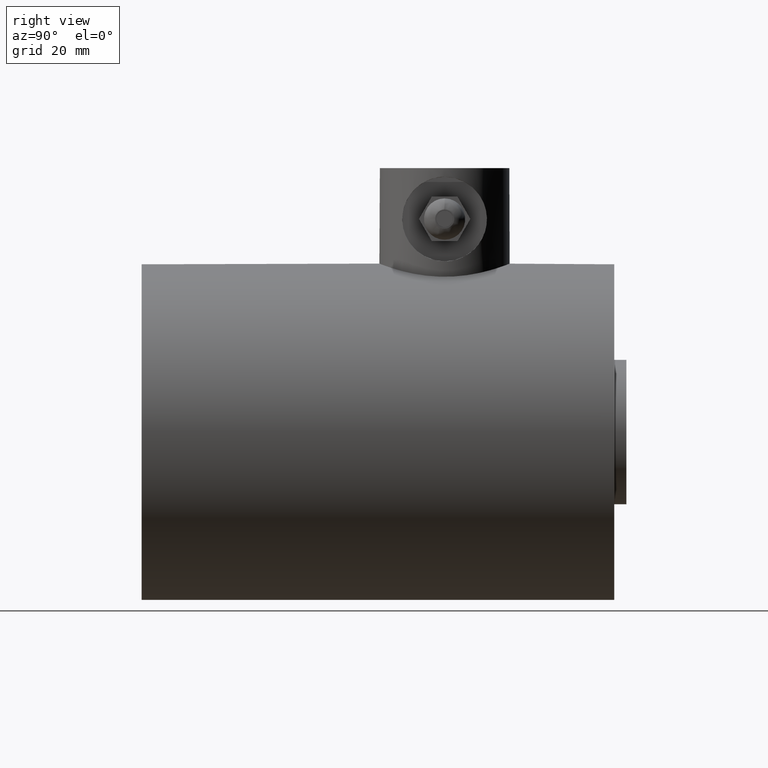
[diagram: clean part render]
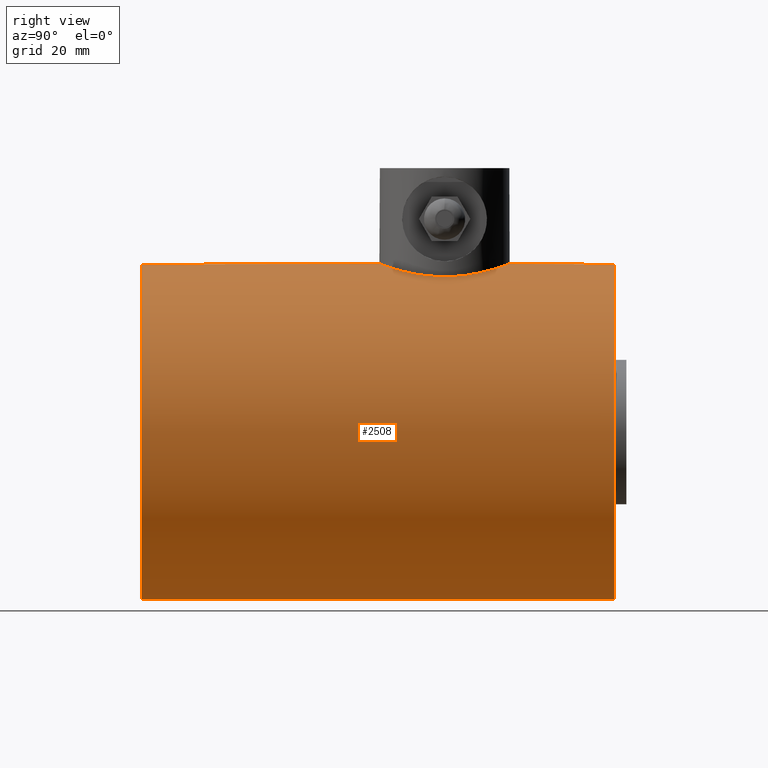
[diagram: same view with one face highlighted and labeled with its STEP entity id]
A machine part, right view. The second image highlights one B-rep face of the part: STEP entity #2508.
In plain terms, the highlighted cylindrical surface (bore or boss wall) has radius 52.959 mm, axis along (0, -1, 0).
Its self-contained STEP definition (entity closure, byte-faithful):
#210=B_SPLINE_CURVE_WITH_KNOTS('',3,(#12952,#12953,#12954,#12955,#12956,
#12957,#12958,#12959,#12960,#12961,#12962,#12963,#12964,#12965,#12966,#12967,
#12968,#12969,#12970,#12971,#12972,#12973,#12974,#12975,#12976,#12977,#12978,
#12979,#12980,#12981,#12982,#12983,#12984,#12985,#12986,#12987,#12988,#12989,
#12990,#12991,#12992,#12993,#12994,#12995,#12996,#12997,#12998,#12999,#13000,
#13001,#13002,#13003,#13004,#13005,#13006,#13007,#13008,#13009,#13010,#13011,
#13012,#13013,#13014,#13015,#13016,#13017),.UNSPECIFIED.,.T.,.F.,(4,2,2,
2,2,2,2,2,2,2,2,2,2,2,2,2,2,2,2,2,2,2,2,2,2,2,2,2,2,2,2,2,4),(0.,0.390740597873084,
0.781481195746169,1.17222179361925,1.56296239149234,1.95335999293871,2.34375759438508,
2.73415519583144,3.12455279727781,3.51495039872418,3.90534800017055,4.29574560161692,
4.68614320306329,5.07688380093637,5.46762439880946,5.85836499668254,6.24910559455563,
6.63984619242871,7.03058679030179,7.42132738817488,7.81206798604796,8.20246558749433,
8.5928631889407,8.98326079038707,9.37365839183344,9.76405599327981,10.1544535947262,
10.5448511961725,10.9352487976189,11.325989395492,11.7167299933651,12.1074705912382,
12.4982111891113),.UNSPECIFIED.);
#232=FACE_BOUND('',#566,.T.);
#407=FACE_OUTER_BOUND('',#565,.T.);
#565=EDGE_LOOP('',(#2255,#2256,#2257,#2258,#2259,#2260));
#566=EDGE_LOOP('',(#2261));
#701=LINE('',#13052,#836);
#836=VECTOR('',#3240,2.085);
#881=CIRCLE('',#2699,2.085);
#882=CIRCLE('',#2700,2.085);
#891=CIRCLE('',#2714,2.085);
#892=CIRCLE('',#2715,2.085);
#1127=VERTEX_POINT('',#12950);
#1128=VERTEX_POINT('',#13020);
#1129=VERTEX_POINT('',#13021);
#1138=VERTEX_POINT('',#13047);
#1139=VERTEX_POINT('',#13048);
#1498=EDGE_CURVE('',#1127,#1127,#210,.T.);
#1499=EDGE_CURVE('',#1128,#1129,#881,.T.);
#1500=EDGE_CURVE('',#1129,#1128,#882,.T.);
#1511=EDGE_CURVE('',#1138,#1139,#891,.T.);
#1512=EDGE_CURVE('',#1139,#1138,#892,.T.);
#1513=EDGE_CURVE('',#1129,#1139,#701,.T.);
#2255=ORIENTED_EDGE('',*,*,#1499,.F.);
#2256=ORIENTED_EDGE('',*,*,#1500,.F.);
#2257=ORIENTED_EDGE('',*,*,#1513,.T.);
#2258=ORIENTED_EDGE('',*,*,#1512,.T.);
#2259=ORIENTED_EDGE('',*,*,#1511,.T.);
#2260=ORIENTED_EDGE('',*,*,#1513,.F.);
#2261=ORIENTED_EDGE('',*,*,#1498,.T.);
#2363=CYLINDRICAL_SURFACE('',#2716,2.085);
#2508=ADVANCED_FACE('',(#407,#232),#2363,.T.);
#2699=AXIS2_PLACEMENT_3D('',#13022,#3202,#3203);
#2700=AXIS2_PLACEMENT_3D('',#13023,#3204,#3205);
#2714=AXIS2_PLACEMENT_3D('',#13049,#3234,#3235);
#2715=AXIS2_PLACEMENT_3D('',#13050,#3236,#3237);
#2716=AXIS2_PLACEMENT_3D('',#13051,#3238,#3239);
#3202=DIRECTION('center_axis',(0.,-1.,0.));
#3203=DIRECTION('ref_axis',(1.,0.,0.));
#3204=DIRECTION('center_axis',(0.,-1.,0.));
#3205=DIRECTION('ref_axis',(1.,0.,0.));
#3234=DIRECTION('center_axis',(0.,-1.,0.));
#3235=DIRECTION('ref_axis',(1.,0.,0.));
#3236=DIRECTION('center_axis',(0.,-1.,0.));
#3237=DIRECTION('ref_axis',(1.,0.,0.));
#3238=DIRECTION('center_axis',(0.,-1.,0.));
#3239=DIRECTION('ref_axis',(1.,0.,0.));
#3240=DIRECTION('',(0.,1.,0.));
#12950=CARTESIAN_POINT('',(-0.807086614173229,3.75,1.92245577250099));
#12952=CARTESIAN_POINT('Ctrl Pts',(-0.807086614173229,3.75,1.92245577250099));
#12953=CARTESIAN_POINT('Ctrl Pts',(-0.807086614173229,3.80127829368413,
1.92245577250099));
#12954=CARTESIAN_POINT('Ctrl Pts',(-0.802121304566818,3.85411045105601,
1.92456528366019));
#12955=CARTESIAN_POINT('Ctrl Pts',(-0.781425883805728,3.95883285580296,
1.93306070938234));
#12956=CARTESIAN_POINT('Ctrl Pts',(-0.765702384735189,4.01072521745136,
1.93943666461303));
#12957=CARTESIAN_POINT('Ctrl Pts',(-0.724366670603454,4.10995942182462,
1.95525128313378));
#12958=CARTESIAN_POINT('Ctrl Pts',(-0.698721686478817,4.1573904873613,1.96468448706365));
#12959=CARTESIAN_POINT('Ctrl Pts',(-0.639662820423411,4.24498533389861,
1.98469861814204));
#12960=CARTESIAN_POINT('Ctrl Pts',(-0.606243078819302,4.28514975695426,
1.99525943869047));
#12961=CARTESIAN_POINT('Ctrl Pts',(-0.535180960207128,4.35621187556643,
2.01548253308796));
#12962=CARTESIAN_POINT('Ctrl Pts',(-0.495031484791362,4.38962768093385,
2.0258779974267));
#12963=CARTESIAN_POINT('Ctrl Pts',(-0.407428802777808,4.44869987257126,
2.0452969471514));
#12964=CARTESIAN_POINT('Ctrl Pts',(-0.359974903511526,4.47436078308284,
2.05430354114747));
#12965=CARTESIAN_POINT('Ctrl Pts',(-0.260694622860297,4.51571456740914,
2.06924703317964));
#12966=CARTESIAN_POINT('Ctrl Pts',(-0.20877967398831,4.53144030295316,2.07518520962808));
#12967=CARTESIAN_POINT('Ctrl Pts',(-0.10404979075198,4.55212937884197,2.08306414869452));
#12968=CARTESIAN_POINT('Ctrl Pts',(-0.0512332810297071,4.55708661417323,
2.085));
#12969=CARTESIAN_POINT('Ctrl Pts',(0.0512332810297072,4.55708661417323,
2.085));
#12970=CARTESIAN_POINT('Ctrl Pts',(0.10404979075198,4.55212937884197,2.08306414869452));
#12971=CARTESIAN_POINT('Ctrl Pts',(0.20877967398831,4.53144030295316,2.07518520962808));
#12972=CARTESIAN_POINT('Ctrl Pts',(0.260694622860297,4.51571456740914,2.06924703317964));
#12973=CARTESIAN_POINT('Ctrl Pts',(0.359974903511526,4.47436078308284,2.05430354114747));
#12974=CARTESIAN_POINT('Ctrl Pts',(0.407428802777808,4.44869987257126,2.0452969471514));
#12975=CARTESIAN_POINT('Ctrl Pts',(0.495031484791362,4.38962768093385,2.0258779974267));
#12976=CARTESIAN_POINT('Ctrl Pts',(0.535180960207128,4.35621187556643,2.01548253308796));
#12977=CARTESIAN_POINT('Ctrl Pts',(0.606243078819302,4.28514975695426,1.99525943869047));
#12978=CARTESIAN_POINT('Ctrl Pts',(0.639662820423411,4.24498533389861,1.98469861814204));
#12979=CARTESIAN_POINT('Ctrl Pts',(0.698721686478817,4.1573904873613,1.96468448706365));
#12980=CARTESIAN_POINT('Ctrl Pts',(0.724366670603454,4.10995942182462,1.95525128313378));
#12981=CARTESIAN_POINT('Ctrl Pts',(0.765702384735189,4.01072521745136,1.93943666461303));
#12982=CARTESIAN_POINT('Ctrl Pts',(0.781425883805728,3.95883285580296,1.93306070938234));
#12983=CARTESIAN_POINT('Ctrl Pts',(0.802121304566818,3.85411045105601,1.92456528366019));
#12984=CARTESIAN_POINT('Ctrl Pts',(0.807086614173229,3.80127829368413,1.92245577250099));
#12985=CARTESIAN_POINT('Ctrl Pts',(0.807086614173229,3.69872170631587,1.92245577250099));
#12986=CARTESIAN_POINT('Ctrl Pts',(0.802121304566818,3.64588954894399,1.92456528366019));
#12987=CARTESIAN_POINT('Ctrl Pts',(0.781425883805728,3.54116714419704,1.93306070938234));
#12988=CARTESIAN_POINT('Ctrl Pts',(0.765702384735189,3.48927478254864,1.93943666461303));
#12989=CARTESIAN_POINT('Ctrl Pts',(0.724366670603453,3.39004057817538,1.95525128313378));
#12990=CARTESIAN_POINT('Ctrl Pts',(0.698721686478817,3.3426095126387,1.96468448706365));
#12991=CARTESIAN_POINT('Ctrl Pts',(0.639662820423411,3.25501466610139,1.98469861814204));
#12992=CARTESIAN_POINT('Ctrl Pts',(0.606243078819302,3.21485024304574,1.99525943869047));
#12993=CARTESIAN_POINT('Ctrl Pts',(0.535180960207128,3.14378812443357,2.01548253308796));
#12994=CARTESIAN_POINT('Ctrl Pts',(0.495031484791362,3.11037231906615,2.0258779974267));
#12995=CARTESIAN_POINT('Ctrl Pts',(0.407428802777809,3.05130012742874,2.0452969471514));
#12996=CARTESIAN_POINT('Ctrl Pts',(0.359974903511526,3.02563921691716,2.05430354114747));
#12997=CARTESIAN_POINT('Ctrl Pts',(0.260694622860297,2.98428543259086,2.06924703317964));
#12998=CARTESIAN_POINT('Ctrl Pts',(0.20877967398831,2.96855969704684,2.07518520962808));
#12999=CARTESIAN_POINT('Ctrl Pts',(0.10404979075198,2.94787062115803,2.08306414869452));
#13000=CARTESIAN_POINT('Ctrl Pts',(0.0512332810297072,2.94291338582677,
2.085));
#13001=CARTESIAN_POINT('Ctrl Pts',(-0.0512332810297073,2.94291338582677,
2.085));
#13002=CARTESIAN_POINT('Ctrl Pts',(-0.10404979075198,2.94787062115803,2.08306414869452));
#13003=CARTESIAN_POINT('Ctrl Pts',(-0.20877967398831,2.96855969704684,2.07518520962808));
#13004=CARTESIAN_POINT('Ctrl Pts',(-0.260694622860297,2.98428543259086,
2.06924703317964));
#13005=CARTESIAN_POINT('Ctrl Pts',(-0.359974903511526,3.02563921691716,
2.05430354114747));
#13006=CARTESIAN_POINT('Ctrl Pts',(-0.407428802777808,3.05130012742874,
2.0452969471514));
#13007=CARTESIAN_POINT('Ctrl Pts',(-0.495031484791362,3.11037231906615,
2.02587799742671));
#13008=CARTESIAN_POINT('Ctrl Pts',(-0.535180960207128,3.14378812443357,
2.01548253308796));
#13009=CARTESIAN_POINT('Ctrl Pts',(-0.606243078819302,3.21485024304574,
1.99525943869047));
#13010=CARTESIAN_POINT('Ctrl Pts',(-0.639662820423411,3.25501466610139,
1.98469861814204));
#13011=CARTESIAN_POINT('Ctrl Pts',(-0.698721686478817,3.3426095126387,1.96468448706365));
#13012=CARTESIAN_POINT('Ctrl Pts',(-0.724366670603454,3.39004057817538,
1.95525128313378));
#13013=CARTESIAN_POINT('Ctrl Pts',(-0.765702384735189,3.48927478254864,
1.93943666461303));
#13014=CARTESIAN_POINT('Ctrl Pts',(-0.781425883805728,3.54116714419704,
1.93306070938234));
#13015=CARTESIAN_POINT('Ctrl Pts',(-0.802121304566818,3.64588954894399,
1.92456528366019));
#13016=CARTESIAN_POINT('Ctrl Pts',(-0.807086614173229,3.69872170631587,
1.92245577250099));
#13017=CARTESIAN_POINT('Ctrl Pts',(-0.807086614173229,3.75,1.92245577250099));
#13020=CARTESIAN_POINT('',(2.085,0.,0.));
#13021=CARTESIAN_POINT('',(-2.085,0.,-2.55338857622223E-16));
#13022=CARTESIAN_POINT('Origin',(0.,0.,0.));
#13023=CARTESIAN_POINT('Origin',(0.,0.,0.));
#13047=CARTESIAN_POINT('',(2.085,5.85,0.));
#13048=CARTESIAN_POINT('',(-2.085,5.85,-2.55338857622223E-16));
#13049=CARTESIAN_POINT('Origin',(0.,5.85,0.));
#13050=CARTESIAN_POINT('Origin',(0.,5.85,0.));
#13051=CARTESIAN_POINT('Origin',(0.,2.925,0.));
#13052=CARTESIAN_POINT('',(-2.085,2.925,-2.55338857622223E-16));